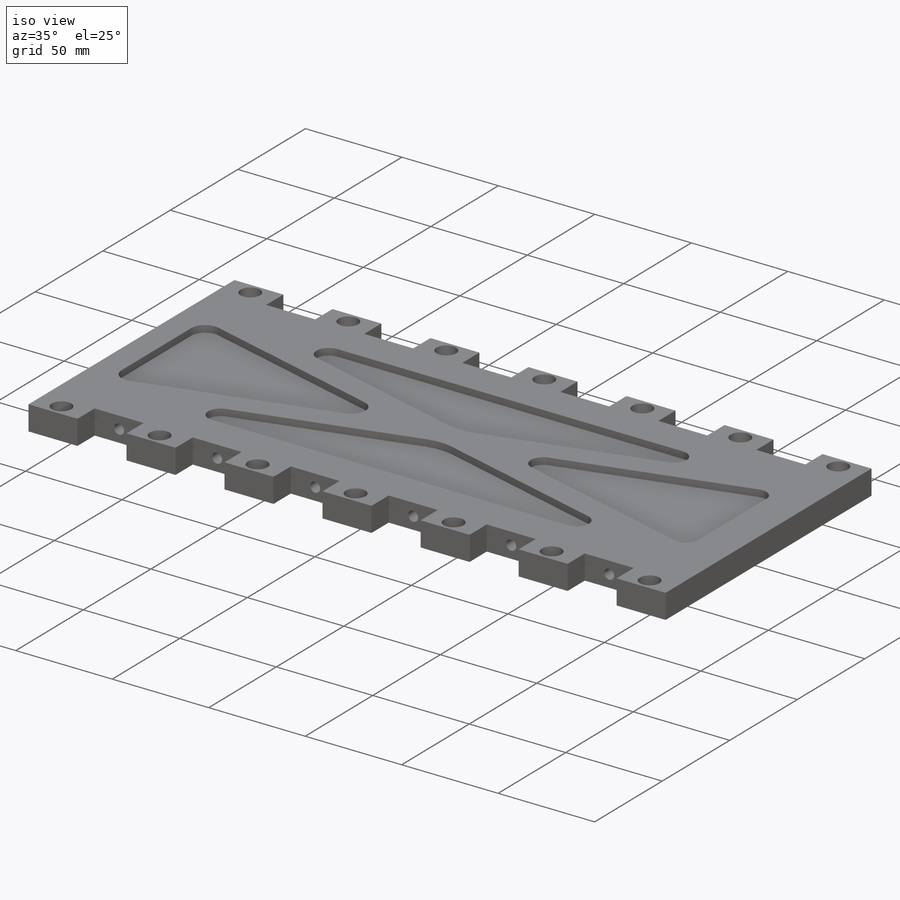
[diagram: iso view]
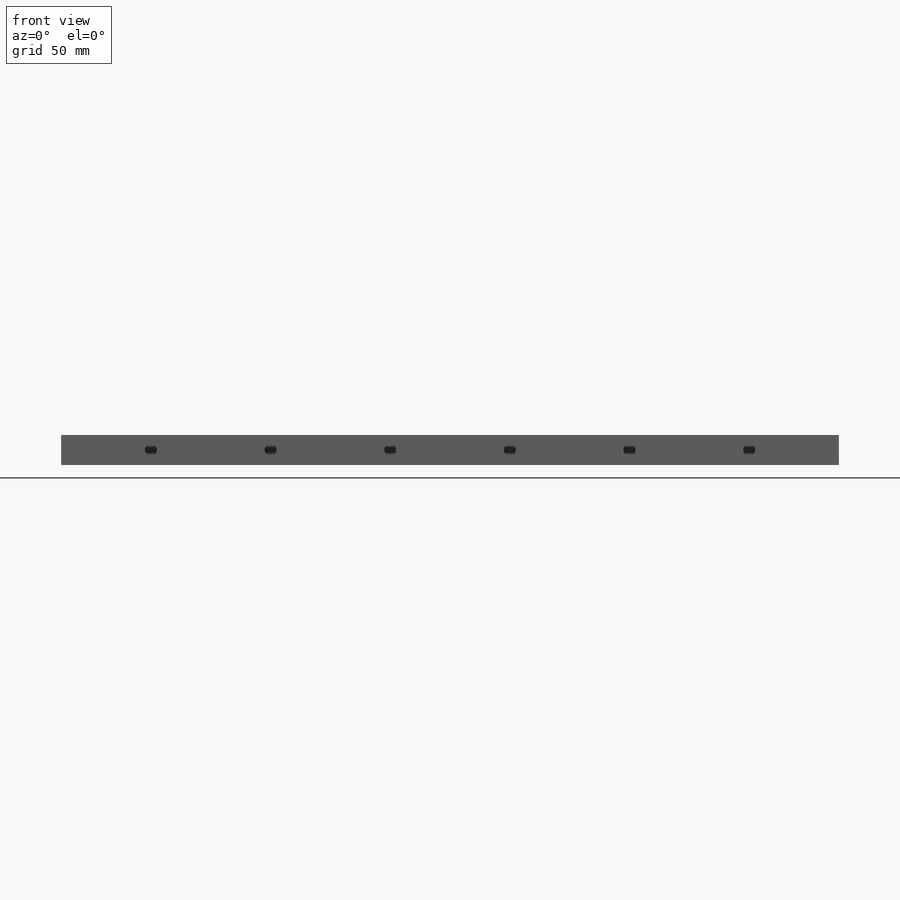
[diagram: front view]
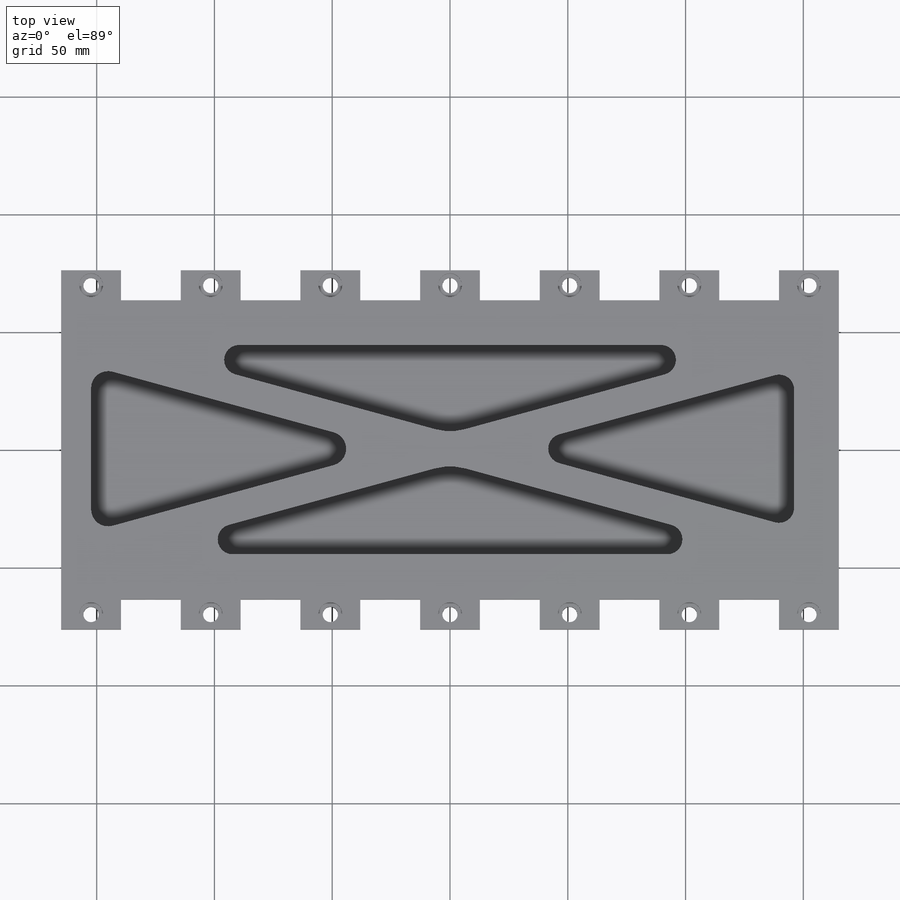
[diagram: top view]
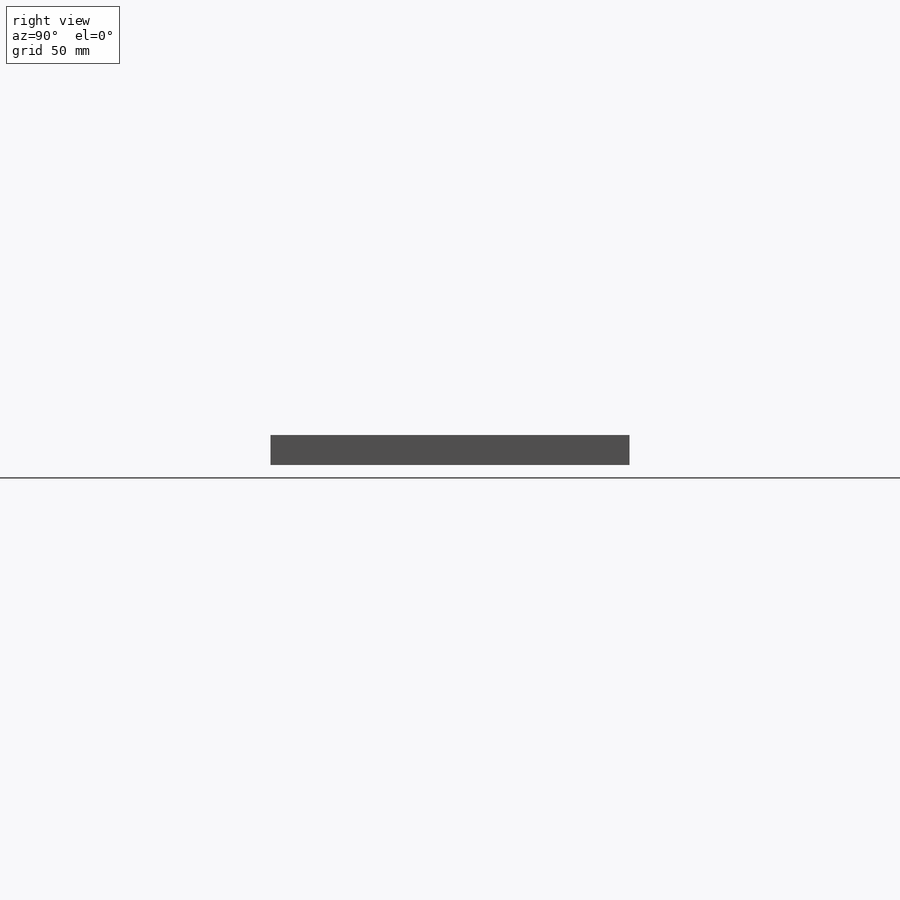
[diagram: right view]
SOLIDWORKS PART (.sldprt)
format: sldprt  version: not decoded by parser v0  size: 438,272 bytes
history: native  units: mm
features: sketch x6, cut_extrude x4, extrude x2, plane x2, mirror x2, material x1 (+13 scaffold rows collapsed)
feature tree (30):
  scaffold x13  (default folders/planes/origin — collapsed)
  material  "6061-T6 (SS)"
  sketch  "Sketch1"  dims[c1.D1=~42.224854mm c1.D2=~201.514478mm c2.D1=127.0mm c2.D2=330.2mm]
  extrude  "Boss-Extrude1"  Depth=12.7mm
  sketch  "Sketch2"  dims[c1.D5=6.35mm c1.D6=6.35mm c1.D1=19.05mm c1.D2=19.05mm c1.D3=12.7mm c1.D4=19.05mm c2.D5=19.05mm c2.D6=19.05mm c2.D7=12.7mm c2.D8=12.7mm c2.D9=12.7mm c2.D10=12.7mm c3.D6=12.7mm c3.D11=12.7mm]
  cut_extrude  "Cut-Extrude1"  Depth=3.556mm
  sketch  "Sketch3"  dims[D1=12.7mm D2=25.4mm D3=7.0 D4=2.0]
  extrude  "Boss-Extrude2"  Depth=12.7mm
  sketch  "Sketch4"  dims[D1=6.477mm D2=7.0 D3=2.0]
  cut_extrude  "Cut-Extrude2"  Depth=25.4mm
  sketch  "Sketch5"  dims[D1=10.16mm D2=7.0 D3=2.0]
  cut_extrude  "Cut-Extrude3"  Depth=6.35mm
  sketch  "Sketch6"  dims[D1=5.1054mm D2=6.0]
  cut_extrude  "Cut-Extrude4"  Depth=25.4mm
  plane  "Plane1"
  plane  "Plane2"
  mirror  "Mirror1"
  mirror  "Mirror2"
decode coverage: 12 of 14 modeling features carry decoded parameters
note: ~ marks probable driven/reference dimensions
note: suppression state not decoded; provenance and decode notes live in map.json
